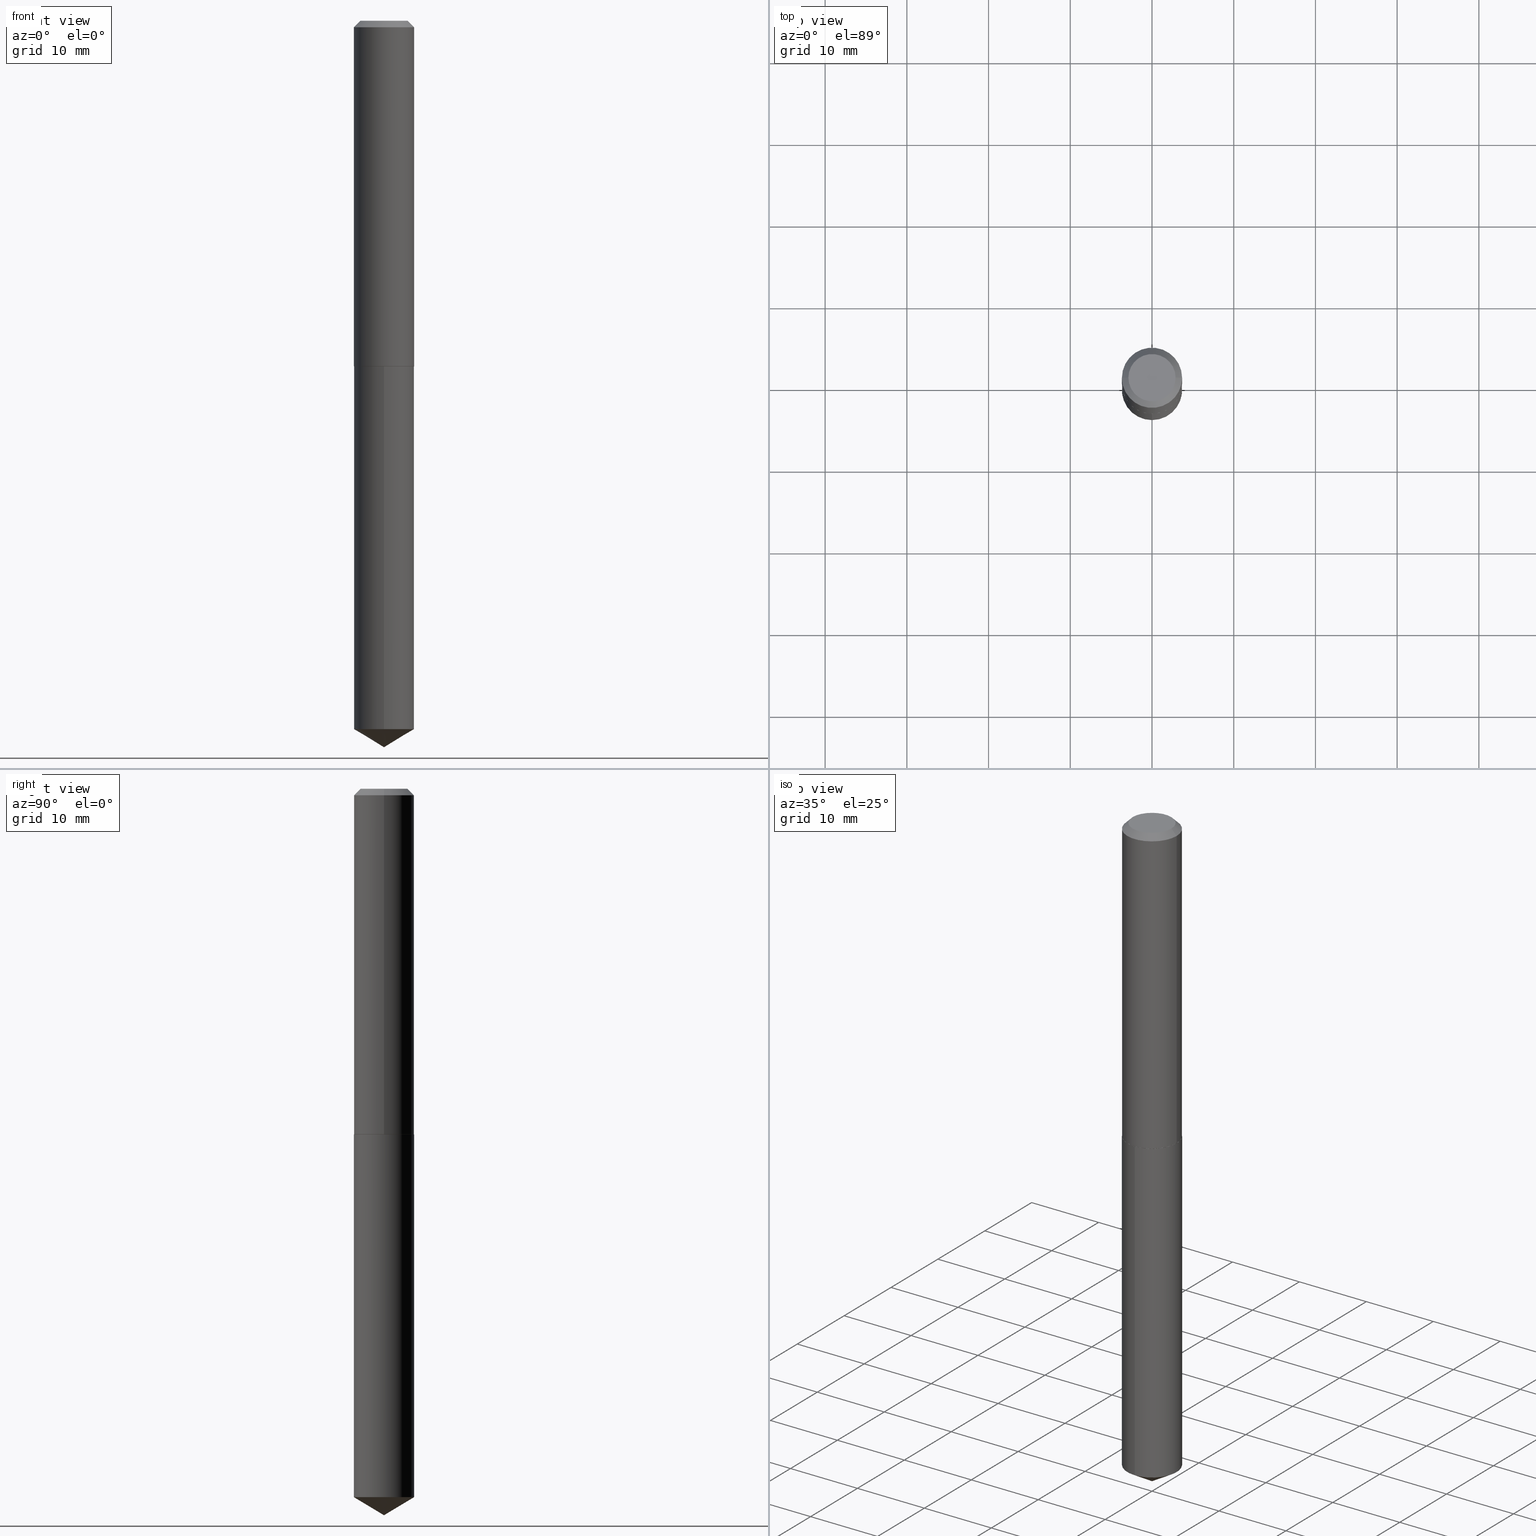
[diagram: canonical four-view strip — front | top / right | iso, engineering-drawing reading convention]
A machine part, canonical four-view strip (front | top / right | iso — engineering-drawing reading convention). The complete STEP part file that produces these views, byte-faithful:
ISO-10303-21;
HEADER;
FILE_DESCRIPTION (( 'STEP AP203' ),
    '1' );
FILE_NAME ('57185.STEP',
    '2024-04-22T23:35:55',
    ( '' ),
    ( '' ),
    'SwSTEP 2.0',
    'SolidWorks 2023',
    '' );
FILE_SCHEMA (( 'CONFIG_CONTROL_DESIGN' ));
ENDSEC;

DATA;
#1 = EDGE_LOOP ( 'NONE', ( #29, #279, #196, #300 ) ) ;
#2 = EDGE_CURVE ( 'NONE', #160, #217, #247, .T. ) ;
#3 = VERTEX_POINT ( 'NONE', #135 ) ;
#4 = AXIS2_PLACEMENT_3D ( 'NONE', #281, #11, #138 ) ;
#5 = CIRCLE ( 'NONE', #27, 0.1137499999999999761 ) ;
#6 = FACE_OUTER_BOUND ( 'NONE', #186, .T. ) ;
#7 = EDGE_CURVE ( 'NONE', #68, #222, #215, .T. ) ;
#8 = DIRECTION ( 'NONE',  ( -6.982962677686265133E-15, -1.000000000000000000, 3.768066198157604711E-15 ) ) ;
#9 = EDGE_LOOP ( 'NONE', ( #184, #337, #194, #181 ) ) ;
#10 = AXIS2_PLACEMENT_3D ( 'NONE', #47, #358, #59 ) ;
#11 = DIRECTION ( 'NONE',  ( -2.445468806185136597E-29, 3.491481338843145583E-15, 1.000000000000000000 ) ) ;
#12 = ADVANCED_FACE ( 'NONE', ( #258 ), #369, .T. ) ;
#13 = VERTEX_POINT ( 'NONE', #165 ) ;
#14 = DIRECTION ( 'NONE',  ( 6.090539988449798946E-15, 0.8571673007021166635, 0.5150380749100469391 ) ) ;
#15 = AXIS2_PLACEMENT_3D ( 'NONE', #56, #269, #115 ) ;
#16 = LINE ( 'NONE', #206, #78 ) ;
#17 = CIRCLE ( 'NONE', #361, 0.1137499999999999761 ) ;
#18 = CALENDAR_DATE ( 2024, 22, 4 ) ;
#19 = CARTESIAN_POINT ( 'NONE',  ( -1.012529588264425330E-15, -0.1450000000000119527, -3.412875210241003820 ) ) ;
#20 = APPROVAL_ROLE ( '' ) ;
#21 = APPROVAL_STATUS ( 'not_yet_approved' ) ;
#22 = DIRECTION ( 'NONE',  ( -6.982962677686267499E-15, -1.000000000000000000, 3.468864327941555954E-15 ) ) ;
#23 = PERSON_AND_ORGANIZATION_ROLE ( 'creator' ) ;
#24 = LINE ( 'NONE', #114, #294 ) ;
#25 = CARTESIAN_POINT ( 'NONE',  ( -1.012529588264467731E-15, -0.1450000000000057909, -1.664999999999999369 ) ) ;
#26 = SHAPE_DEFINITION_REPRESENTATION ( #214, #82 ) ;
#27 = AXIS2_PLACEMENT_3D ( 'NONE', #324, #51, #273 ) ;
#28 = EDGE_CURVE ( 'NONE', #221, #129, #307, .T. ) ;
#29 = ORIENTED_EDGE ( 'NONE', *, *, #45, .F. ) ;
#30 = EDGE_LOOP ( 'NONE', ( #139, #282, #76, #64 ) ) ;
#31 = CIRCLE ( 'NONE', #293, 0.1450000000000001843 ) ;
#32 = EDGE_CURVE ( 'NONE', #221, #188, #31, .T. ) ;
#33 = DIMENSIONAL_EXPONENTS ( 1.000000000000000000, 0.000000000000000000, 0.000000000000000000, 0.000000000000000000, 0.000000000000000000, 0.000000000000000000, 0.000000000000000000 ) ;
#34 = VERTEX_POINT ( 'NONE', #44 ) ;
#35 = ORIENTED_EDGE ( 'NONE', *, *, #389, .T. ) ;
#36 = DIRECTION ( 'NONE',  ( 2.445458584404726260E-29, -3.491495977014480144E-15, -1.000000000000000000 ) ) ;
#37 = ORIENTED_EDGE ( 'NONE', *, *, #201, .T. ) ;
#38 = DIRECTION ( 'NONE',  ( -6.982962677686267499E-15, -1.000000000000000000, 3.468864327941555954E-15 ) ) ;
#39 = DIRECTION ( 'NONE',  ( 1.000000000000000000, -6.982962677686270655E-15, 0.000000000000000000 ) ) ;
#40 = ADVANCED_FACE ( 'NONE', ( #6 ), #304, .F. ) ;
#41 = AXIS2_PLACEMENT_3D ( 'NONE', #236, #168, #205 ) ;
#42 = ORIENTED_EDGE ( 'NONE', *, *, #185, .T. ) ;
#43 = CALENDAR_DATE ( 2024, 22, 4 ) ;
#44 = CARTESIAN_POINT ( 'NONE',  ( 0.1137499999999999761, -9.421313243811162805E-16, 5.388445916309068099E-19 ) ) ;
#45 = EDGE_CURVE ( 'NONE', #34, #129, #340, .T. ) ;
#46 = CARTESIAN_POINT ( 'NONE',  ( 8.346061999650333898E-29, -1.191601569405364291E-14, -3.412875210241004709 ) ) ;
#47 = CARTESIAN_POINT ( 'NONE',  ( 4.071705562298252030E-29, -5.813316429173836443E-15, -1.664999999999999813 ) ) ;
#48 = DIRECTION ( 'NONE',  ( 1.000000000000000000, 0.000000000000000000, 0.000000000000000000 ) ) ;
#49 = CARTESIAN_POINT ( 'NONE',  ( 0.000000000000000000, 0.000000000000000000, 0.000000000000000000 ) ) ;
#50 = AXIS2_PLACEMENT_3D ( 'NONE', #46, #58, #379 ) ;
#51 = DIRECTION ( 'NONE',  ( -2.445468806185136597E-29, 3.491481338843145583E-15, 1.000000000000000000 ) ) ;
#52 = DIRECTION ( 'NONE',  ( 0.000000000000000000, 0.000000000000000000, 1.000000000000000000 ) ) ;
#53 = DIRECTION ( 'NONE',  ( -2.445468806185136597E-29, 3.491481338843145583E-15, 1.000000000000000000 ) ) ;
#54 = CARTESIAN_POINT ( 'NONE',  ( 0.1450000000000001843, -6.824100276768925663E-15, -1.664499999999999869 ) ) ;
#55 = DIRECTION ( 'NONE',  ( -2.445458584404726821E-29, 3.491495977014480144E-15, 1.000000000000000000 ) ) ;
#56 = CARTESIAN_POINT ( 'NONE',  ( 4.071705562298252030E-29, -5.813316429173836443E-15, -1.664999999999999813 ) ) ;
#57 = COORDINATED_UNIVERSAL_TIME_OFFSET ( 5, 0, .BEHIND. ) ;
#58 = DIRECTION ( 'NONE',  ( -2.445458584404726821E-29, 3.491495977014480144E-15, 1.000000000000000000 ) ) ;
#59 = DIRECTION ( 'NONE',  ( -6.982962677686265133E-15, -1.000000000000000000, 3.768066198157604711E-15 ) ) ;
#60 = AXIS2_PLACEMENT_3D ( 'NONE', #351, #382, #93 ) ;
#61 = CC_DESIGN_APPROVAL ( #133, ( #362 ) ) ;
#62 = ORIENTED_EDGE ( 'NONE', *, *, #121, .T. ) ;
#63 = ADVANCED_FACE ( 'NONE', ( #74 ), #65, .T. ) ;
#64 = ORIENTED_EDGE ( 'NONE', *, *, #136, .F. ) ;
#65 = CONICAL_SURFACE ( 'NONE', #4, 0.1450000000000001843, 0.7853981633976873100 ) ;
#66 = CC_DESIGN_APPROVAL ( #298, ( #151 ) ) ;
#67 = LOCAL_TIME ( 19, 35, 55.00000000000000000, #86 ) ;
#68 = VERTEX_POINT ( 'NONE', #256 ) ;
#69 = ADVANCED_FACE ( 'NONE', ( #341 ), #131, .T. ) ;
#70 = ORIENTED_EDGE ( 'NONE', *, *, #121, .F. ) ;
#71 = AXIS2_PLACEMENT_3D ( 'NONE', #228, #124, #140 ) ;
#72 = APPROVAL_PERSON_ORGANIZATION ( #120, #133, #235 ) ;
#73 = CARTESIAN_POINT ( 'NONE',  ( 0.1449999999999999900, -1.103881001515721012E-15, -0.03125000000000021511 ) ) ;
#74 = FACE_OUTER_BOUND ( 'NONE', #100, .T. ) ;
#75 = EDGE_CURVE ( 'NONE', #160, #365, #16, .T. ) ;
#76 = ORIENTED_EDGE ( 'NONE', *, *, #103, .T. ) ;
#77 = CC_DESIGN_DATE_AND_TIME_ASSIGNMENT ( #92, #123, ( #151 ) ) ;
#78 = VECTOR ( 'NONE', #146, 39.37007874015748143 ) ;
#79 = COORDINATED_UNIVERSAL_TIME_OFFSET ( 5, 0, .BEHIND. ) ;
#80 = CIRCLE ( 'NONE', #50, 0.1449999999999999900 ) ;
#81 = ORIENTED_EDGE ( 'NONE', *, *, #201, .F. ) ;
#82 = ADVANCED_BREP_SHAPE_REPRESENTATION ( '57185', ( #368, #375, #191 ), #254 ) ;
#83 = MECHANICAL_CONTEXT ( 'NONE', #197, 'mechanical' ) ;
#84 = CARTESIAN_POINT ( 'NONE',  ( -1.317727640200104241E-47, 1.881365836194669315E-33, 5.388445916248356047E-19 ) ) ;
#85 = CC_DESIGN_PERSON_AND_ORGANIZATION_ASSIGNMENT ( #310, #321, ( #367 ) ) ;
#86 = COORDINATED_UNIVERSAL_TIME_OFFSET ( 5, 0, .BEHIND. ) ;
#87 = DIRECTION ( 'NONE',  ( 1.000000000000000000, -6.982962677686270655E-15, 0.000000000000000000 ) ) ;
#88 = CARTESIAN_POINT ( 'NONE',  ( -8.771877495912722854E-28, 1.252402599890077553E-13, 35.87007874015748143 ) ) ;
#89 = DIRECTION ( 'NONE',  ( -1.000000000000000000, 6.982962677686265922E-15, -4.876176775795935793E-29 ) ) ;
#90 = CIRCLE ( 'NONE', #71, 0.1449999999999999900 ) ;
#91 = CARTESIAN_POINT ( 'NONE',  ( 8.559105045416542891E-29, -1.222023591955067814E-14, -3.500000000000000000 ) ) ;
#92 = DATE_AND_TIME ( #348, #334 ) ;
#93 = DIRECTION ( 'NONE',  ( -6.982962677686265133E-15, -1.000000000000000000, 3.768066198157604711E-15 ) ) ;
#94 = DIRECTION ( 'NONE',  ( -1.000000000000000000, 6.982962677686266711E-15, 0.000000000000000000 ) ) ;
#95 = EDGE_CURVE ( 'NONE', #188, #245, #320, .T. ) ;
#96 = DESIGN_CONTEXT ( 'detailed design', #210, 'design' ) ;
#97 = DIRECTION ( 'NONE',  ( 1.000000000000000000, -6.982962677686265922E-15, 0.000000000000000000 ) ) ;
#98 = AXIS2_PLACEMENT_3D ( 'NONE', #108, #343, #110 ) ;
#99 = CIRCLE ( 'NONE', #10, 0.1449999999999999900 ) ;
#100 = EDGE_LOOP ( 'NONE', ( #37, #159, #335, #333 ) ) ;
#101 = ORIENTED_EDGE ( 'NONE', *, *, #7, .F. ) ;
#102 = ORIENTED_EDGE ( 'NONE', *, *, #189, .F. ) ;
#103 = EDGE_CURVE ( 'NONE', #129, #245, #90, .T. ) ;
#104 = CARTESIAN_POINT ( 'NONE',  ( 0.1450000000000001010, -1.012529588264509344E-15, 7.070456324904111664E-30 ) ) ;
#105 = DIRECTION ( 'NONE',  ( 6.982962677686265922E-15, 1.000000000000000000, -3.491495977014480144E-15 ) ) ;
#106 = CLOSED_SHELL ( 'NONE', ( #69, #12, #63, #295, #327, #301, #225, #250 ) ) ;
#107 = AXIS2_PLACEMENT_3D ( 'NONE', #174, #149, #384 ) ;
#108 = CARTESIAN_POINT ( 'NONE',  ( 0.000000000000000000, 0.000000000000000000, 0.000000000000000000 ) ) ;
#109 = EDGE_LOOP ( 'NONE', ( #81, #101 ) ) ;
#110 = DIRECTION ( 'NONE',  ( 1.000000000000000000, -6.982962677686266711E-15, 4.876176775795935793E-29 ) ) ;
#111 = CONICAL_SURFACE ( 'NONE', #107, 0.1449999999999999900, 0.7853981633974449483 ) ;
#112 = CARTESIAN_POINT ( 'NONE',  ( 0.1445000000000003226, -6.822354536099503371E-15, -1.664999999999999591 ) ) ;
#113 = APPROVAL_DATE_TIME ( #387, #298 ) ;
#114 = CARTESIAN_POINT ( 'NONE',  ( -0.1450000000000001843, -4.781283721652268754E-15, -1.664499999999999869 ) ) ;
#115 = DIRECTION ( 'NONE',  ( -6.982962677686265133E-15, -1.000000000000000000, 3.768066198157604711E-15 ) ) ;
#116 = CC_DESIGN_PERSON_AND_ORGANIZATION_ASSIGNMENT ( #314, #145, ( #362 ) ) ;
#117 = CARTESIAN_POINT ( 'NONE',  ( 4.071705562298252030E-29, -5.813316429173836443E-15, -1.664999999999999813 ) ) ;
#118 = DIRECTION ( 'NONE',  ( 2.438088387897960049E-29, -3.491481338843145188E-15, -1.000000000000000000 ) ) ;
#119 = ORIENTED_EDGE ( 'NONE', *, *, #28, .T. ) ;
#120 = PERSON_AND_ORGANIZATION ( #296, #353 ) ;
#121 = EDGE_CURVE ( 'NONE', #3, #365, #132, .T. ) ;
#122 = DIRECTION ( 'NONE',  ( -2.445458584404726821E-29, 3.491495977014480144E-15, 1.000000000000000000 ) ) ;
#123 = DATE_TIME_ROLE ( 'creation_date' ) ;
#124 = DIRECTION ( 'NONE',  ( -2.445468806185136597E-29, 3.491481338843145583E-15, 1.000000000000000000 ) ) ;
#125 = DATE_AND_TIME ( #43, #216 ) ;
#126 = EDGE_CURVE ( 'NONE', #275, #34, #5, .T. ) ;
#127 = AXIS2_PLACEMENT_3D ( 'NONE', #49, #53, #262 ) ;
#128 = ORIENTED_EDGE ( 'NONE', *, *, #2, .F. ) ;
#129 = VERTEX_POINT ( 'NONE', #172 ) ;
#130 = EDGE_CURVE ( 'NONE', #365, #3, #99, .T. ) ;
#131 = CONICAL_SURFACE ( 'NONE', #385, 0.1449999999999999900, 0.7853981633974449483 ) ;
#132 = CIRCLE ( 'NONE', #15, 0.1449999999999999900 ) ;
#133 = APPROVAL ( #176, 'UNSPECIFIED' ) ;
#134 = DIRECTION ( 'NONE',  ( -2.445468806185136597E-29, 3.491481338843145583E-15, 1.000000000000000000 ) ) ;
#135 = CARTESIAN_POINT ( 'NONE',  ( -1.012529588264467731E-15, -0.1450000000000057909, -1.664999999999999369 ) ) ;
#136 = EDGE_CURVE ( 'NONE', #275, #245, #178, .T. ) ;
#137 = EDGE_LOOP ( 'NONE', ( #164, #329, #70, #102 ) ) ;
#138 = DIRECTION ( 'NONE',  ( 1.000000000000000000, -6.982962677686270655E-15, 0.000000000000000000 ) ) ;
#139 = ORIENTED_EDGE ( 'NONE', *, *, #244, .F. ) ;
#140 = DIRECTION ( 'NONE',  ( 1.000000000000000000, -6.982962677686266711E-15, 0.000000000000000000 ) ) ;
#141 = CARTESIAN_POINT ( 'NONE',  ( 0.000000000000000000, 0.000000000000000000, 0.000000000000000000 ) ) ;
#142 = CIRCLE ( 'NONE', #344, 0.1449999999999999900 ) ;
#143 = CC_DESIGN_SECURITY_CLASSIFICATION ( #367, ( #362 ) ) ;
#144 = CARTESIAN_POINT ( 'NONE',  ( -8.771877495912722854E-28, 1.252402599890077553E-13, 35.87007874015748143 ) ) ;
#145 = PERSON_AND_ORGANIZATION_ROLE ( 'creator' ) ;
#146 = DIRECTION ( 'NONE',  ( -2.445458584404726821E-29, 3.491495977014480144E-15, 1.000000000000000000 ) ) ;
#147 = PERSON_AND_ORGANIZATION ( #296, #353 ) ;
#148 = DIRECTION ( 'NONE',  ( -2.445468806185136597E-29, 3.491481338843145583E-15, 1.000000000000000000 ) ) ;
#149 = DIRECTION ( 'NONE',  ( 2.445468806185136597E-29, -3.491481338843145583E-15, -1.000000000000000000 ) ) ;
#150 = PERSON_AND_ORGANIZATION ( #296, #353 ) ;
#151 = PRODUCT_DEFINITION ( 'UNKNOWN', '', #362, #96 ) ;
#152 = DATE_AND_TIME ( #207, #67 ) ;
#153 = DIRECTION ( 'NONE',  ( -6.982962677686265133E-15, -1.000000000000000000, 3.768066198157604711E-15 ) ) ;
#154 = CONICAL_SURFACE ( 'NONE', #303, 0.1450000000000001843, 0.7853981633976873100 ) ;
#155 = DIRECTION ( 'NONE',  ( -0.7071067811865451302, 2.468850131082231817E-15, -0.7071067811865499042 ) ) ;
#156 = AXIS2_PLACEMENT_3D ( 'NONE', #357, #272, #87 ) ;
#157 = CC_DESIGN_APPROVAL ( #187, ( #367 ) ) ;
#158 = EDGE_CURVE ( 'NONE', #245, #129, #142, .T. ) ;
#159 = ORIENTED_EDGE ( 'NONE', *, *, #336, .T. ) ;
#160 = VERTEX_POINT ( 'NONE', #237 ) ;
#161 = ORIENTED_EDGE ( 'NONE', *, *, #158, .F. ) ;
#162 = ORIENTED_EDGE ( 'NONE', *, *, #336, .F. ) ;
#163 = VECTOR ( 'NONE', #212, 39.37007874015748143 ) ;
#164 = ORIENTED_EDGE ( 'NONE', *, *, #306, .T. ) ;
#165 = CARTESIAN_POINT ( 'NONE',  ( 8.559105045416542891E-29, -1.222023591955067814E-14, -3.500000000000000000 ) ) ;
#166 = COORDINATED_UNIVERSAL_TIME_OFFSET ( 5, 0, .BEHIND. ) ;
#167 = CARTESIAN_POINT ( 'NONE',  ( -0.1137499999999999761, 8.488664005062359884E-16, 5.388445916190900742E-19 ) ) ;
#168 = DIRECTION ( 'NONE',  ( -2.438088387897960049E-29, 3.491481338843145188E-15, 1.000000000000000000 ) ) ;
#169 = CARTESIAN_POINT ( 'NONE',  ( -0.1450000000000001843, -4.781283721652268754E-15, -1.664499999999999869 ) ) ;
#170 = AXIS2_PLACEMENT_3D ( 'NONE', #88, #364, #38 ) ;
#171 =( CONVERSION_BASED_UNIT ( 'INCH', #227 ) LENGTH_UNIT ( ) NAMED_UNIT ( #33 ) );
#172 = CARTESIAN_POINT ( 'NONE',  ( 0.1449999999999999900, -1.121638380103357655E-15, -0.03125000000000021511 ) ) ;
#173 = EDGE_CURVE ( 'NONE', #222, #221, #199, .T. ) ;
#174 = CARTESIAN_POINT ( 'NONE',  ( 7.642090019328604414E-31, -1.091087918388490513E-16, -0.03125000000000021511 ) ) ;
#175 = PRODUCT ( '57185', '57185', '', ( #83 ) ) ;
#176 = APPROVAL_STATUS ( 'not_yet_approved' ) ;
#177 = FACE_OUTER_BOUND ( 'NONE', #109, .T. ) ;
#178 = LINE ( 'NONE', #313, #261 ) ;
#179 = DIRECTION ( 'NONE',  ( 1.000000000000000000, -6.982962677686270655E-15, 0.000000000000000000 ) ) ;
#180 = CIRCLE ( 'NONE', #390, 0.1445000000000003226 ) ;
#181 = ORIENTED_EDGE ( 'NONE', *, *, #28, .F. ) ;
#182 = CC_DESIGN_PERSON_AND_ORGANIZATION_ASSIGNMENT ( #147, #289, ( #175 ) ) ;
#183 = APPROVAL_PERSON_ORGANIZATION ( #287, #298, #268 ) ;
#184 = ORIENTED_EDGE ( 'NONE', *, *, #32, .T. ) ;
#185 = EDGE_CURVE ( 'NONE', #13, #160, #292, .T. ) ;
#186 = EDGE_LOOP ( 'NONE', ( #62, #372 ) ) ;
#187 = APPROVAL ( #241, 'UNSPECIFIED' ) ;
#188 = VERTEX_POINT ( 'NONE', #169 ) ;
#189 = EDGE_CURVE ( 'NONE', #217, #3, #288, .T. ) ;
#190 = CARTESIAN_POINT ( 'NONE',  ( 4.071705562298250909E-29, -5.813316429173835654E-15, -1.664999999999999591 ) ) ;
#191 = AXIS2_PLACEMENT_3D ( 'NONE', #141, #52, #48 ) ;
#192 = DIRECTION ( 'NONE',  ( 0.7071067811865451302, -7.319954787623248157E-15, -0.7071067811865499042 ) ) ;
#193 = ORIENTED_EDGE ( 'NONE', *, *, #255, .T. ) ;
#194 = ORIENTED_EDGE ( 'NONE', *, *, #103, .F. ) ;
#195 = COORDINATED_UNIVERSAL_TIME_OFFSET ( 5, 0, .BEHIND. ) ;
#196 = ORIENTED_EDGE ( 'NONE', *, *, #136, .T. ) ;
#197 = APPLICATION_CONTEXT ( 'configuration controlled 3d designs of mechanical parts and assemblies' ) ;
#198 = PLANE ( 'NONE',  #41 ) ;
#199 = LINE ( 'NONE', #291, #163 ) ;
#200 = APPROVAL_DATE_TIME ( #152, #133 ) ;
#201 = EDGE_CURVE ( 'NONE', #222, #68, #180, .T. ) ;
#202 =( LENGTH_UNIT ( ) NAMED_UNIT ( * ) SI_UNIT ( $, .METRE. ) );
#203 = DIRECTION ( 'NONE',  ( 2.445468806185136597E-29, -3.491481338843145583E-15, -1.000000000000000000 ) ) ;
#204 = VECTOR ( 'NONE', #305, 39.37007874015748143 ) ;
#205 = DIRECTION ( 'NONE',  ( 1.000000000000000000, -6.982962677686265922E-15, 4.876176775795935793E-29 ) ) ;
#206 = CARTESIAN_POINT ( 'NONE',  ( 1.030286966852185825E-15, 0.1449999999999941891, -1.665000000000000480 ) ) ;
#207 = CALENDAR_DATE ( 2024, 22, 4 ) ;
#208 = CARTESIAN_POINT ( 'NONE',  ( 4.070482827895159789E-29, -5.811570688504414939E-15, -1.664499999999999869 ) ) ;
#209 = FACE_OUTER_BOUND ( 'NONE', #302, .T. ) ;
#210 = APPLICATION_CONTEXT ( 'configuration controlled 3d designs of mechanical parts and assemblies' ) ;
#211 = CYLINDRICAL_SURFACE ( 'NONE', #127, 0.1450000000000001010 ) ;
#212 = DIRECTION ( 'NONE',  ( 0.7071067811867165487, -2.468850131084027659E-15, 0.7071067811863784858 ) ) ;
#213 = ADVANCED_FACE ( 'NONE', ( #209 ), #309, .T. ) ;
#214 = PRODUCT_DEFINITION_SHAPE ( 'NONE', 'NONE',  #151 ) ;
#215 = CIRCLE ( 'NONE', #342, 0.1445000000000003226 ) ;
#216 = LOCAL_TIME ( 19, 35, 55.00000000000000000, #195 ) ;
#217 = VERTEX_POINT ( 'NONE', #19 ) ;
#218 = ORIENTED_EDGE ( 'NONE', *, *, #126, .T. ) ;
#219 = EDGE_LOOP ( 'NONE', ( #359, #253, #249, #233 ) ) ;
#220 = EDGE_LOOP ( 'NONE', ( #162, #363, #339, #224 ) ) ;
#221 = VERTEX_POINT ( 'NONE', #54 ) ;
#222 = VERTEX_POINT ( 'NONE', #112 ) ;
#223 = CARTESIAN_POINT ( 'NONE',  ( 4.070482827895159789E-29, -5.811570688504414939E-15, -1.664499999999999869 ) ) ;
#224 = ORIENTED_EDGE ( 'NONE', *, *, #389, .F. ) ;
#225 = ADVANCED_FACE ( 'NONE', ( #346 ), #111, .T. ) ;
#226 = DIRECTION ( 'NONE',  ( 1.000000000000000000, -6.982962677686265922E-15, 0.000000000000000000 ) ) ;
#227 = LENGTH_MEASURE_WITH_UNIT ( LENGTH_MEASURE( 0.02539999999999999897 ), #202 );
#228 = CARTESIAN_POINT ( 'NONE',  ( 7.642090019328604414E-31, -1.091087918388490513E-16, -0.03125000000000021511 ) ) ;
#229 = PERSON_AND_ORGANIZATION ( #296, #353 ) ;
#230 = CARTESIAN_POINT ( 'NONE',  ( 1.030286966852228818E-15, 0.1449999999999941891, -1.665000000000000480 ) ) ;
#231 = FACE_OUTER_BOUND ( 'NONE', #373, .T. ) ;
#232 = CARTESIAN_POINT ( 'NONE',  ( 4.071705562298250909E-29, -5.813316429173835654E-15, -1.664999999999999591 ) ) ;
#233 = ORIENTED_EDGE ( 'NONE', *, *, #130, .F. ) ;
#234 = LOCAL_TIME ( 19, 35, 55.00000000000000000, #166 ) ;
#235 = APPROVAL_ROLE ( '' ) ;
#236 = CARTESIAN_POINT ( 'NONE',  ( 6.269781247221985052E-29, -2.665546941664499521E-15, -1.664999999999999813 ) ) ;
#237 = CARTESIAN_POINT ( 'NONE',  ( 1.030286966852228818E-15, 0.1449999999999881106, -3.412875210241005153 ) ) ;
#238 = PERSON_AND_ORGANIZATION_ROLE ( 'design_supplier' ) ;
#239 = DIRECTION ( 'NONE',  ( -2.445468806185136597E-29, 3.491481338843145583E-15, 1.000000000000000000 ) ) ;
#240 = DATE_AND_TIME ( #328, #345 ) ;
#241 = APPROVAL_STATUS ( 'not_yet_approved' ) ;
#242 = CIRCLE ( 'NONE', #156, 0.1450000000000001843 ) ;
#243 = AXIS2_PLACEMENT_3D ( 'NONE', #383, #118, #89 ) ;
#244 = EDGE_CURVE ( 'NONE', #34, #275, #17, .T. ) ;
#245 = VERTEX_POINT ( 'NONE', #380 ) ;
#246 = EDGE_LOOP ( 'NONE', ( #280, #42, #297 ) ) ;
#247 = CIRCLE ( 'NONE', #360, 0.1449999999999999900 ) ;
#248 = VECTOR ( 'NONE', #14, 39.37007874015748143 ) ;
#249 = ORIENTED_EDGE ( 'NONE', *, *, #189, .T. ) ;
#250 = ADVANCED_FACE ( 'NONE', ( #231 ), #350, .F. ) ;
#251 = CARTESIAN_POINT ( 'NONE',  ( 4.071705562298252030E-29, -5.813316429173836443E-15, -1.664999999999999813 ) ) ;
#252 = VECTOR ( 'NONE', #192, 39.37007874015748143 ) ;
#253 = ORIENTED_EDGE ( 'NONE', *, *, #2, .T. ) ;
#254 =( GEOMETRIC_REPRESENTATION_CONTEXT ( 3 ) GLOBAL_UNCERTAINTY_ASSIGNED_CONTEXT ( ( #330 ) ) GLOBAL_UNIT_ASSIGNED_CONTEXT ( ( #171, #332, #276 ) ) REPRESENTATION_CONTEXT ( 'NONE', 'WORKASPACE' ) );
#255 = EDGE_CURVE ( 'NONE', #13, #217, #352, .T. ) ;
#256 = CARTESIAN_POINT ( 'NONE',  ( -0.1445000000000003226, -4.783932948826378378E-15, -1.664999999999999591 ) ) ;
#257 = CC_DESIGN_DATE_AND_TIME_ASSIGNMENT ( #125, #325, ( #367 ) ) ;
#258 = FACE_OUTER_BOUND ( 'NONE', #9, .T. ) ;
#259 = CARTESIAN_POINT ( 'NONE',  ( 7.642090019328604414E-31, -1.091087918388490513E-16, -0.03125000000000021511 ) ) ;
#260 = AXIS2_PLACEMENT_3D ( 'NONE', #251, #36, #105 ) ;
#261 = VECTOR ( 'NONE', #155, 39.37007874015748143 ) ;
#262 = DIRECTION ( 'NONE',  ( 1.000000000000000000, -6.982962677686266711E-15, 4.876176775795935793E-29 ) ) ;
#263 = DIRECTION ( 'NONE',  ( 1.000000000000000000, -6.982962677686267499E-15, 4.876171487322469432E-29 ) ) ;
#264 = APPROVAL_DATE_TIME ( #240, #187 ) ;
#265 = PRODUCT_RELATED_PRODUCT_CATEGORY ( 'detail', '', ( #175 ) ) ;
#266 = SECURITY_CLASSIFICATION_LEVEL ( 'unclassified' ) ;
#267 = DIRECTION ( 'NONE',  ( -2.445458584404726821E-29, 3.491495977014480144E-15, 1.000000000000000000 ) ) ;
#268 = APPROVAL_ROLE ( '' ) ;
#269 = DIRECTION ( 'NONE',  ( -2.445458584404726821E-29, 3.491495977014480144E-15, 1.000000000000000000 ) ) ;
#270 = VECTOR ( 'NONE', #354, 39.37007874015748143 ) ;
#271 = PERSON_AND_ORGANIZATION ( #296, #353 ) ;
#272 = DIRECTION ( 'NONE',  ( -2.445468806185136597E-29, 3.491481338843145583E-15, 1.000000000000000000 ) ) ;
#273 = DIRECTION ( 'NONE',  ( 1.000000000000000000, -6.982962677686267499E-15, 4.876171487322469432E-29 ) ) ;
#274 = ADVANCED_FACE ( 'NONE', ( #277 ), #286, .T. ) ;
#275 = VERTEX_POINT ( 'NONE', #167 ) ;
#276 =( NAMED_UNIT ( * ) SI_UNIT ( $, .STERADIAN. ) SOLID_ANGLE_UNIT ( ) );
#277 = FACE_OUTER_BOUND ( 'NONE', #246, .T. ) ;
#278 = CC_DESIGN_PERSON_AND_ORGANIZATION_ASSIGNMENT ( #271, #238, ( #362 ) ) ;
#279 = ORIENTED_EDGE ( 'NONE', *, *, #126, .F. ) ;
#280 = ORIENTED_EDGE ( 'NONE', *, *, #255, .F. ) ;
#281 = CARTESIAN_POINT ( 'NONE',  ( 4.070482827895159789E-29, -5.811570688504414939E-15, -1.664499999999999869 ) ) ;
#282 = ORIENTED_EDGE ( 'NONE', *, *, #45, .T. ) ;
#283 = CARTESIAN_POINT ( 'NONE',  ( 7.642090019328604414E-31, -1.091087918388490513E-16, -0.03125000000000021511 ) ) ;
#284 = DIRECTION ( 'NONE',  ( -2.445468806185136597E-29, 3.491481338843145583E-15, 1.000000000000000000 ) ) ;
#285 = ADVANCED_FACE ( 'NONE', ( #378 ), #319, .T. ) ;
#286 = CONICAL_SURFACE ( 'NONE', #170, 65.52281426576915635, 1.029744258676659419 ) ;
#287 = PERSON_AND_ORGANIZATION ( #296, #353 ) ;
#288 = LINE ( 'NONE', #25, #326 ) ;
#289 = PERSON_AND_ORGANIZATION_ROLE ( 'design_owner' ) ;
#290 = CYLINDRICAL_SURFACE ( 'NONE', #318, 0.1449999999999999900 ) ;
#291 = CARTESIAN_POINT ( 'NONE',  ( 0.1450000000000001843, -6.824100276768925663E-15, -1.664499999999999869 ) ) ;
#292 = LINE ( 'NONE', #388, #248 ) ;
#293 = AXIS2_PLACEMENT_3D ( 'NONE', #223, #311, #39 ) ;
#294 = VECTOR ( 'NONE', #322, 39.37007874015748143 ) ;
#295 = ADVANCED_FACE ( 'NONE', ( #177 ), #198, .F. ) ;
#296 = PERSON ( 'UNSPECIFIED', 'UNSPECIFIED', 'UNSPECIFIED', ('UNSPECIFIED'), ('UNSPECIFIED'), ('UNSPECIFIED') ) ;
#297 = ORIENTED_EDGE ( 'NONE', *, *, #306, .F. ) ;
#298 = APPROVAL ( #21, 'UNSPECIFIED' ) ;
#299 = ORIENTED_EDGE ( 'NONE', *, *, #95, .F. ) ;
#300 = ORIENTED_EDGE ( 'NONE', *, *, #158, .T. ) ;
#301 = ADVANCED_FACE ( 'NONE', ( #315 ), #211, .T. ) ;
#302 = EDGE_LOOP ( 'NONE', ( #370, #193, #128 ) ) ;
#303 = AXIS2_PLACEMENT_3D ( 'NONE', #208, #148, #179 ) ;
#304 = PLANE ( 'NONE',  #260 ) ;
#305 = DIRECTION ( 'NONE',  ( -2.445468806185136877E-29, 3.491481338843145188E-15, 1.000000000000000000 ) ) ;
#306 = EDGE_CURVE ( 'NONE', #217, #160, #80, .T. ) ;
#307 = LINE ( 'NONE', #104, #204 ) ;
#308 = DIRECTION ( 'NONE',  ( -2.445458584404726821E-29, 3.491495977014480144E-15, 1.000000000000000000 ) ) ;
#309 = CONICAL_SURFACE ( 'NONE', #371, 65.52281426576915635, 1.029744258676659419 ) ;
#310 = PERSON_AND_ORGANIZATION ( #296, #353 ) ;
#311 = DIRECTION ( 'NONE',  ( -2.445468806185136597E-29, 3.491481338843145583E-15, 1.000000000000000000 ) ) ;
#312 = APPLICATION_PROTOCOL_DEFINITION ( 'international standard', 'config_control_design', 1994, #210 ) ;
#313 = CARTESIAN_POINT ( 'NONE',  ( -0.1449999999999999900, 9.034207964256594541E-16, -0.03125000000000021511 ) ) ;
#314 = PERSON_AND_ORGANIZATION ( #296, #353 ) ;
#315 = FACE_OUTER_BOUND ( 'NONE', #331, .T. ) ;
#316 = CARTESIAN_POINT ( 'NONE',  ( -0.1450000000000001010, 1.030286966852145987E-15, -7.132455880869617335E-30 ) ) ;
#317 = CLOSED_SHELL ( 'NONE', ( #381, #274, #213, #285, #40 ) ) ;
#318 = AXIS2_PLACEMENT_3D ( 'NONE', #117, #55, #153 ) ;
#319 = CYLINDRICAL_SURFACE ( 'NONE', #60, 0.1449999999999999900 ) ;
#320 = LINE ( 'NONE', #316, #366 ) ;
#321 = PERSON_AND_ORGANIZATION_ROLE ( 'classification_officer' ) ;
#322 = DIRECTION ( 'NONE',  ( -0.7071067811867165487, 7.493145998870964739E-15, 0.7071067811863784858 ) ) ;
#323 = DIRECTION ( 'NONE',  ( -2.445468806185136877E-29, 3.491481338843145188E-15, 1.000000000000000000 ) ) ;
#324 = CARTESIAN_POINT ( 'NONE',  ( -1.317727640200104241E-47, 1.881365836194669315E-33, 5.388445916248356047E-19 ) ) ;
#325 = DATE_TIME_ROLE ( 'classification_date' ) ;
#326 = VECTOR ( 'NONE', #122, 39.37007874015748143 ) ;
#327 = ADVANCED_FACE ( 'NONE', ( #355 ), #154, .T. ) ;
#328 = CALENDAR_DATE ( 2024, 22, 4 ) ;
#329 = ORIENTED_EDGE ( 'NONE', *, *, #75, .T. ) ;
#330 = UNCERTAINTY_MEASURE_WITH_UNIT (LENGTH_MEASURE( 1.000000000000000082E-05 ), #171, 'distance_accuracy_value', 'NONE');
#331 = EDGE_LOOP ( 'NONE', ( #299, #35, #119, #161 ) ) ;
#332 =( NAMED_UNIT ( * ) PLANE_ANGLE_UNIT ( ) SI_UNIT ( $, .RADIAN. ) );
#333 = ORIENTED_EDGE ( 'NONE', *, *, #173, .F. ) ;
#334 = LOCAL_TIME ( 19, 35, 55.00000000000000000, #79 ) ;
#335 = ORIENTED_EDGE ( 'NONE', *, *, #32, .F. ) ;
#336 = EDGE_CURVE ( 'NONE', #68, #188, #24, .T. ) ;
#337 = ORIENTED_EDGE ( 'NONE', *, *, #95, .T. ) ;
#338 = CARTESIAN_POINT ( 'NONE',  ( 8.346061999650333898E-29, -1.191601569405364291E-14, -3.412875210241004709 ) ) ;
#339 = ORIENTED_EDGE ( 'NONE', *, *, #173, .T. ) ;
#340 = LINE ( 'NONE', #73, #252 ) ;
#341 = FACE_OUTER_BOUND ( 'NONE', #30, .T. ) ;
#342 = AXIS2_PLACEMENT_3D ( 'NONE', #190, #134, #226 ) ;
#343 = DIRECTION ( 'NONE',  ( -2.445468806185136597E-29, 3.491481338843145583E-15, 1.000000000000000000 ) ) ;
#344 = AXIS2_PLACEMENT_3D ( 'NONE', #283, #239, #356 ) ;
#345 = LOCAL_TIME ( 19, 35, 55.00000000000000000, #57 ) ;
#346 = FACE_OUTER_BOUND ( 'NONE', #1, .T. ) ;
#347 = CC_DESIGN_PERSON_AND_ORGANIZATION_ASSIGNMENT ( #229, #23, ( #151 ) ) ;
#348 = CALENDAR_DATE ( 2024, 22, 4 ) ;
#349 = FACE_OUTER_BOUND ( 'NONE', #137, .T. ) ;
#350 = PLANE ( 'NONE',  #243 ) ;
#351 = CARTESIAN_POINT ( 'NONE',  ( 4.071705562298252030E-29, -5.813316429173836443E-15, -1.664999999999999813 ) ) ;
#352 = LINE ( 'NONE', #91, #270 ) ;
#353 = ORGANIZATION ( 'UNSPECIFIED', 'UNSPECIFIED', '' ) ;
#354 = DIRECTION ( 'NONE',  ( -5.985567269335961790E-15, -0.8571673007021131108, 0.5150380749100529343 ) ) ;
#355 = FACE_OUTER_BOUND ( 'NONE', #220, .T. ) ;
#356 = DIRECTION ( 'NONE',  ( 1.000000000000000000, -6.982962677686266711E-15, 0.000000000000000000 ) ) ;
#357 = CARTESIAN_POINT ( 'NONE',  ( 4.070482827895159789E-29, -5.811570688504414939E-15, -1.664499999999999869 ) ) ;
#358 = DIRECTION ( 'NONE',  ( -2.445458584404726821E-29, 3.491495977014480144E-15, 1.000000000000000000 ) ) ;
#359 = ORIENTED_EDGE ( 'NONE', *, *, #75, .F. ) ;
#360 = AXIS2_PLACEMENT_3D ( 'NONE', #338, #308, #8 ) ;
#361 = AXIS2_PLACEMENT_3D ( 'NONE', #84, #284, #263 ) ;
#362 = PRODUCT_DEFINITION_FORMATION_WITH_SPECIFIED_SOURCE ( 'ANY', '', #175, .NOT_KNOWN. ) ;
#363 = ORIENTED_EDGE ( 'NONE', *, *, #7, .T. ) ;
#364 = DIRECTION ( 'NONE',  ( -2.445458584404726821E-29, 3.491495977014480144E-15, 1.000000000000000000 ) ) ;
#365 = VERTEX_POINT ( 'NONE', #230 ) ;
#366 = VECTOR ( 'NONE', #323, 39.37007874015748143 ) ;
#367 = SECURITY_CLASSIFICATION ( '', '', #266 ) ;
#368 = MANIFOLD_SOLID_BREP ( 'Body-Move/Copy2[1]', #317 ) ;
#369 = CYLINDRICAL_SURFACE ( 'NONE', #98, 0.1450000000000001010 ) ;
#370 = ORIENTED_EDGE ( 'NONE', *, *, #185, .F. ) ;
#371 = AXIS2_PLACEMENT_3D ( 'NONE', #144, #267, #22 ) ;
#372 = ORIENTED_EDGE ( 'NONE', *, *, #130, .T. ) ;
#373 = EDGE_LOOP ( 'NONE', ( #218, #374 ) ) ;
#374 = ORIENTED_EDGE ( 'NONE', *, *, #244, .T. ) ;
#375 = MANIFOLD_SOLID_BREP ( 'Body-Move/Copy2[2]', #106 ) ;
#376 = DIRECTION ( 'NONE',  ( -2.445468806185136597E-29, 3.491481338843145583E-15, 1.000000000000000000 ) ) ;
#377 = APPLICATION_PROTOCOL_DEFINITION ( 'international standard', 'config_control_design', 1994, #197 ) ;
#378 = FACE_OUTER_BOUND ( 'NONE', #219, .T. ) ;
#379 = DIRECTION ( 'NONE',  ( -6.982962677686265133E-15, -1.000000000000000000, 3.768066198157604711E-15 ) ) ;
#380 = CARTESIAN_POINT ( 'NONE',  ( -0.1449999999999999900, -1.930052773319485835E-15, -0.03125000000000021511 ) ) ;
#381 = ADVANCED_FACE ( 'NONE', ( #349 ), #290, .T. ) ;
#382 = DIRECTION ( 'NONE',  ( -2.445458584404726821E-29, 3.491495977014480144E-15, 1.000000000000000000 ) ) ;
#383 = CARTESIAN_POINT ( 'NONE',  ( -6.588638201000521204E-48, 9.406829180973346575E-34, 2.694222958124178023E-19 ) ) ;
#384 = DIRECTION ( 'NONE',  ( -1.000000000000000000, 6.982962677686266711E-15, 0.000000000000000000 ) ) ;
#385 = AXIS2_PLACEMENT_3D ( 'NONE', #259, #203, #94 ) ;
#386 = APPROVAL_PERSON_ORGANIZATION ( #150, #187, #20 ) ;
#387 = DATE_AND_TIME ( #18, #234 ) ;
#388 = CARTESIAN_POINT ( 'NONE',  ( 8.559139382423024426E-29, -1.222018717444013673E-14, -3.500000000000000000 ) ) ;
#389 = EDGE_CURVE ( 'NONE', #188, #221, #242, .T. ) ;
#390 = AXIS2_PLACEMENT_3D ( 'NONE', #232, #376, #97 ) ;
ENDSEC;
END-ISO-10303-21;
